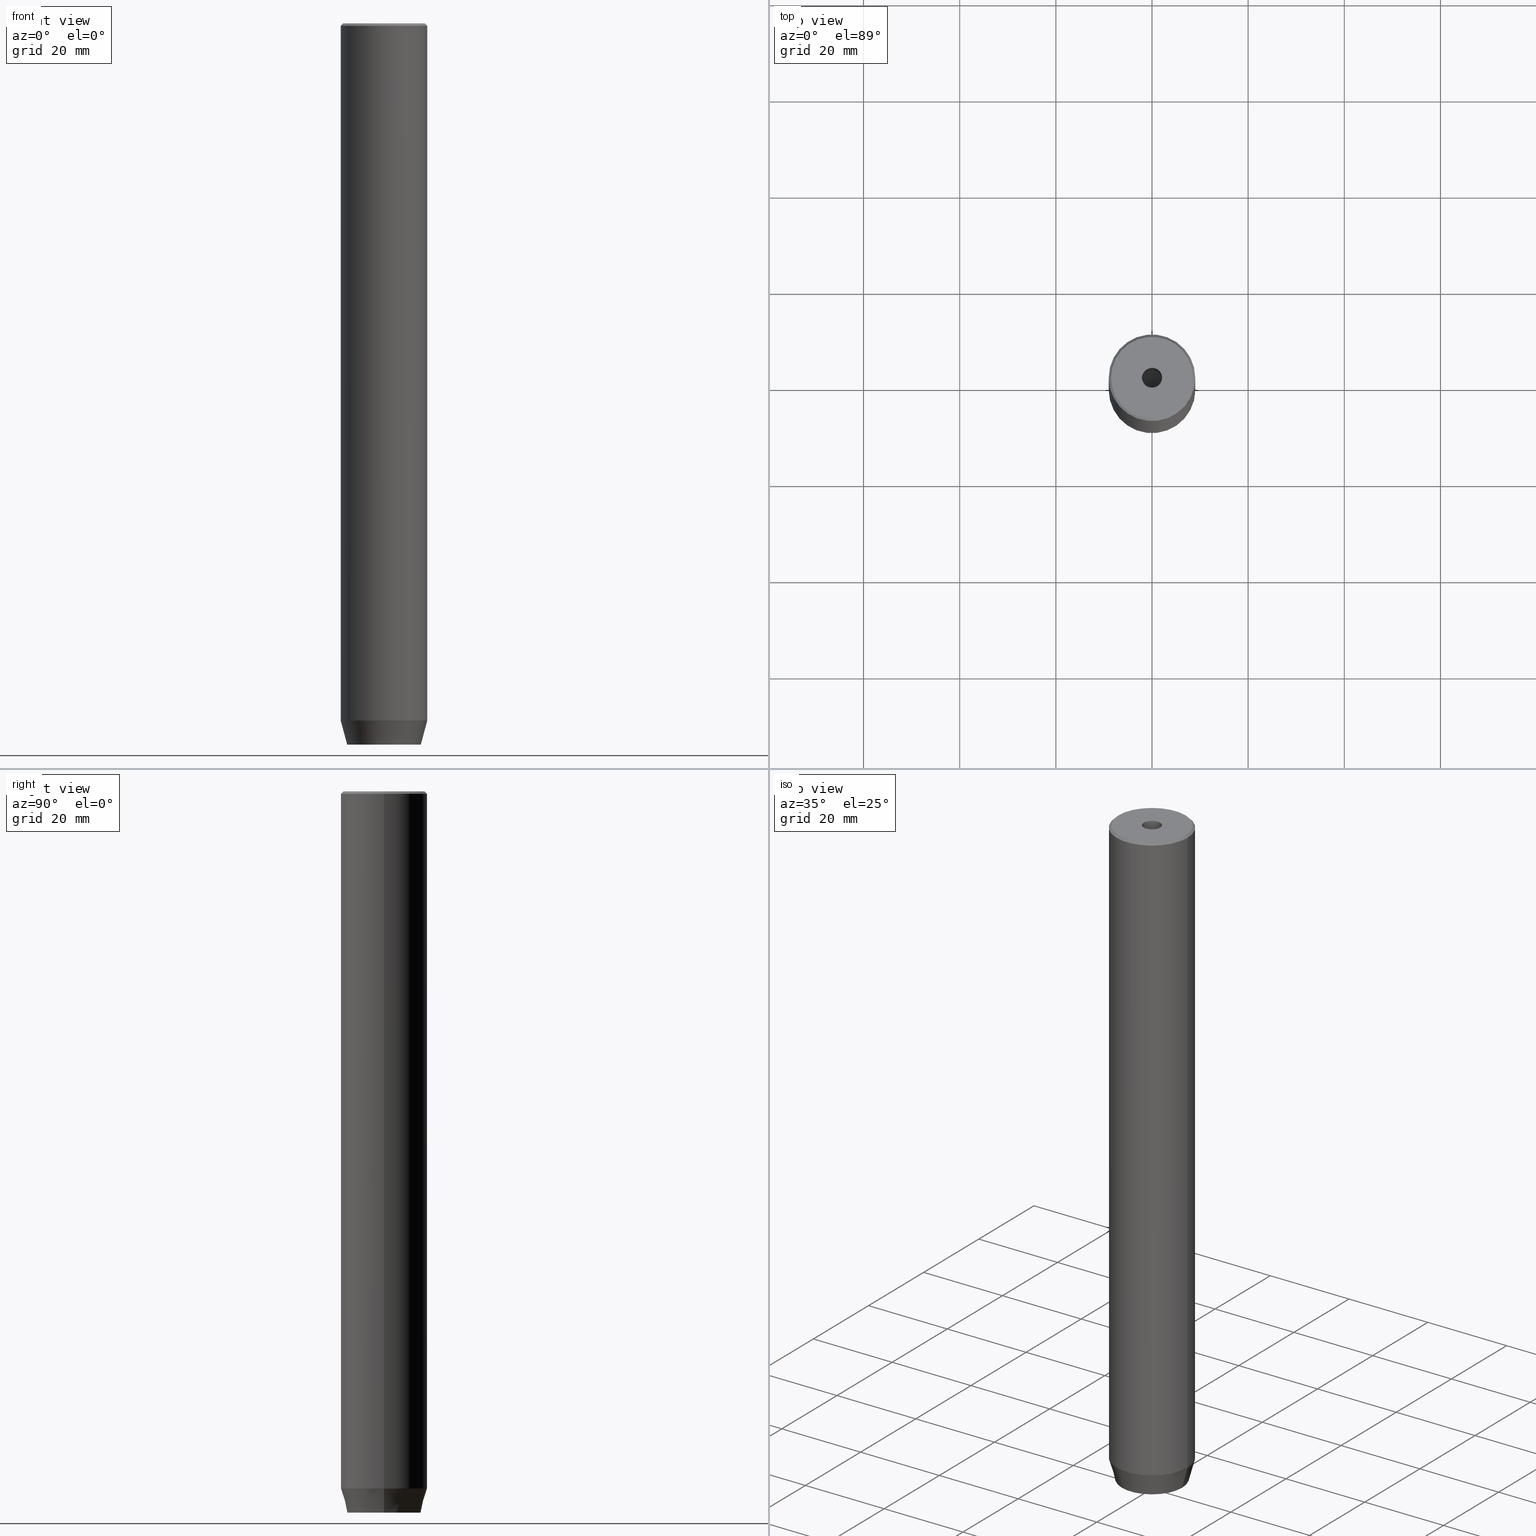
[diagram: canonical four-view strip — front | top / right | iso, engineering-drawing reading convention]
A machine part, canonical four-view strip (front | top / right | iso — engineering-drawing reading convention). The complete STEP part file that produces these views, byte-faithful:
ISO-10303-21;
HEADER;
FILE_DESCRIPTION (( 'STEP AP203' ),
    '1' );
FILE_NAME ('cc35.STEP',
    '2024-01-02T20:36:01',
    ( '' ),
    ( '' ),
    'SwSTEP 2.0',
    'SolidWorks 2019',
    '' );
FILE_SCHEMA (( 'CONFIG_CONTROL_DESIGN' ));
ENDSEC;

DATA;
#1 = CARTESIAN_POINT ( 'NONE',  ( -9.000000000000000000, 1.102182119232617714E-15, -144.9999999999999716 ) ) ;
#2 = ORIENTED_EDGE ( 'NONE', *, *, #428, .T. ) ;
#3 = CARTESIAN_POINT ( 'NONE',  ( 3.000000000000000000, 1.732050807568876527, -150.0000000000000000 ) ) ;
#4 = EDGE_CURVE ( 'NONE', #558, #394, #495, .T. ) ;
#5 = VERTEX_POINT ( 'NONE', #89 ) ;
#6 = VECTOR ( 'NONE', #150, 1000.000000000000000 ) ;
#7 = LINE ( 'NONE', #145, #283 ) ;
#8 = VERTEX_POINT ( 'NONE', #304 ) ;
#9 = DIRECTION ( 'NONE',  ( 1.000000000000000000, 0.000000000000000000, 0.000000000000000000 ) ) ;
#10 = LINE ( 'NONE', #233, #101 ) ;
#11 = EDGE_CURVE ( 'NONE', #84, #215, #270, .T. ) ;
#12 = VECTOR ( 'NONE', #71, 1000.000000000000000 ) ;
#13 = PLANE ( 'NONE',  #350 ) ;
#14 = PERSON_AND_ORGANIZATION ( #187, #148 ) ;
#15 = CYLINDRICAL_SURFACE ( 'NONE', #571, 9.000000000000000000 ) ;
#16 = CARTESIAN_POINT ( 'NONE',  ( -2.168404344971008868E-16, -3.464101615137754830, -147.1999999999999886 ) ) ;
#17 = ADVANCED_FACE ( 'NONE', ( #261 ), #509, .T. ) ;
#18 = DIRECTION ( 'NONE',  ( 0.000000000000000000, 0.000000000000000000, 1.000000000000000000 ) ) ;
#19 = PLANE ( 'NONE',  #461 ) ;
#20 = CIRCLE ( 'NONE', #327, 9.000000000000000000 ) ;
#21 = EDGE_LOOP ( 'NONE', ( #241, #587, #72, #380 ) ) ;
#22 = DIRECTION ( 'NONE',  ( -0.000000000000000000, -0.000000000000000000, 1.000000000000000000 ) ) ;
#23 = CARTESIAN_POINT ( 'NONE',  ( -3.000000000000000444, -7.511572993685800087E-16, -150.0000000000000000 ) ) ;
#24 = ORIENTED_EDGE ( 'NONE', *, *, #447, .T. ) ;
#25 = COORDINATED_UNIVERSAL_TIME_OFFSET ( 1, 0, .AHEAD. ) ;
#26 = PRODUCT_DEFINITION ( 'NEZN�M�', '', #330, #27 ) ;
#27 = DESIGN_CONTEXT ( 'detailed design', #70, 'design' ) ;
#28 = LINE ( 'NONE', #340, #378 ) ;
#29 = ORIENTED_EDGE ( 'NONE', *, *, #356, .F. ) ;
#30 = DATE_AND_TIME ( #256, #493 ) ;
#31 = DIRECTION ( 'NONE',  ( -0.000000000000000000, -0.000000000000000000, -1.000000000000000000 ) ) ;
#32 = VERTEX_POINT ( 'NONE', #456 ) ;
#33 = AXIS2_PLACEMENT_3D ( 'NONE', #143, #324, #390 ) ;
#34 = CALENDAR_DATE ( 2024, 2, 1 ) ;
#35 = DIRECTION ( 'NONE',  ( 1.000000000000000000, 0.000000000000000000, 0.000000000000000000 ) ) ;
#36 = ORIENTED_EDGE ( 'NONE', *, *, #191, .F. ) ;
#37 = PLANE ( 'NONE',  #42 ) ;
#38 = ORIENTED_EDGE ( 'NONE', *, *, #307, .F. ) ;
#39 = EDGE_CURVE ( 'NONE', #311, #394, #10, .T. ) ;
#40 = DIRECTION ( 'NONE',  ( -0.000000000000000000, -0.000000000000000000, 1.000000000000000000 ) ) ;
#41 = ORIENTED_EDGE ( 'NONE', *, *, #138, .F. ) ;
#42 = AXIS2_PLACEMENT_3D ( 'NONE', #496, #540, #267 ) ;
#43 = DIRECTION ( 'NONE',  ( -0.000000000000000000, -0.000000000000000000, 1.000000000000000000 ) ) ;
#44 = DIRECTION ( 'NONE',  ( -0.000000000000000000, -0.000000000000000000, -1.000000000000000000 ) ) ;
#45 = EDGE_CURVE ( 'NONE', #317, #479, #209, .T. ) ;
#46 = CARTESIAN_POINT ( 'NONE',  ( 0.000000000000000000, 0.000000000000000000, -150.0000000000000000 ) ) ;
#47 = ORIENTED_EDGE ( 'NONE', *, *, #202, .T. ) ;
#48 = DIRECTION ( 'NONE',  ( 2.503857664561933362E-16, -1.000000000000000000, 0.000000000000000000 ) ) ;
#49 = ORIENTED_EDGE ( 'NONE', *, *, #80, .T. ) ;
#50 = VECTOR ( 'NONE', #386, 1000.000000000000000 ) ;
#51 = DIRECTION ( 'NONE',  ( 1.000000000000000000, 0.000000000000000000, 0.000000000000000000 ) ) ;
#52 = CARTESIAN_POINT ( 'NONE',  ( 0.000000000000000000, 0.000000000000000000, -147.1999999999999886 ) ) ;
#53 = LINE ( 'NONE', #365, #569 ) ;
#54 = EDGE_CURVE ( 'NONE', #479, #526, #463, .T. ) ;
#55 = DIRECTION ( 'NONE',  ( 0.5000000000000001110, -0.8660254037844385966, 0.000000000000000000 ) ) ;
#56 = AXIS2_PLACEMENT_3D ( 'NONE', #336, #375, #117 ) ;
#57 = AXIS2_PLACEMENT_3D ( 'NONE', #415, #22, #318 ) ;
#58 = DIRECTION ( 'NONE',  ( -2.503857664561932376E-16, 1.000000000000000000, 0.000000000000000000 ) ) ;
#59 = ORIENTED_EDGE ( 'NONE', *, *, #428, .F. ) ;
#60 = EDGE_CURVE ( 'NONE', #558, #230, #185, .T. ) ;
#61 = LINE ( 'NONE', #372, #508 ) ;
#62 = CARTESIAN_POINT ( 'NONE',  ( -3.000000000000000444, -7.511572993685800087E-16, -147.1999999999999886 ) ) ;
#63 = CYLINDRICAL_SURFACE ( 'NONE', #158, 2.099999999999997424 ) ;
#64 = EDGE_LOOP ( 'NONE', ( #135, #120 ) ) ;
#65 = LINE ( 'NONE', #328, #482 ) ;
#66 = DIRECTION ( 'NONE',  ( -0.8660254037844385966, -0.5000000000000001110, 0.000000000000000000 ) ) ;
#67 = AXIS2_PLACEMENT_3D ( 'NONE', #561, #512, #35 ) ;
#68 = EDGE_LOOP ( 'NONE', ( #287, #362, #531, #183 ) ) ;
#69 = LOCAL_TIME ( 21, 36, 1.000000000000000000, #481 ) ;
#70 = APPLICATION_CONTEXT ( 'configuration controlled 3d designs of mechanical parts and assemblies' ) ;
#71 = DIRECTION ( 'NONE',  ( -0.8660254037844385966, -0.5000000000000001110, 0.000000000000000000 ) ) ;
#72 = ORIENTED_EDGE ( 'NONE', *, *, #60, .F. ) ;
#73 = EDGE_CURVE ( 'NONE', #397, #449, #61, .T. ) ;
#74 = CARTESIAN_POINT ( 'NONE',  ( -2.099999999999996092, 2.571758278209436534E-16, -20.00000000000000000 ) ) ;
#75 = ORIENTED_EDGE ( 'NONE', *, *, #114, .F. ) ;
#76 = PERSON_AND_ORGANIZATION ( #187, #148 ) ;
#77 = CARTESIAN_POINT ( 'NONE',  ( 0.000000000000000000, 0.000000000000000000, 0.000000000000000000 ) ) ;
#78 = ORIENTED_EDGE ( 'NONE', *, *, #490, .F. ) ;
#79 = CARTESIAN_POINT ( 'NONE',  ( -2.099999999999996092, 2.571758278209436534E-16, -20.00000000000000000 ) ) ;
#80 = EDGE_CURVE ( 'NONE', #469, #178, #506, .T. ) ;
#81 = DIRECTION ( 'NONE',  ( -0.8660254037844385966, 0.5000000000000001110, 0.000000000000000000 ) ) ;
#82 = APPROVAL_STATUS ( 'not_yet_approved' ) ;
#83 = DIRECTION ( 'NONE',  ( -0.000000000000000000, -0.000000000000000000, 1.000000000000000000 ) ) ;
#84 = VERTEX_POINT ( 'NONE', #407 ) ;
#85 = DIRECTION ( 'NONE',  ( 0.8660254037844387076, 0.4999999999999999445, 0.000000000000000000 ) ) ;
#86 = ORIENTED_EDGE ( 'NONE', *, *, #54, .T. ) ;
#87 = VECTOR ( 'NONE', #129, 1000.000000000000000 ) ;
#88 = CARTESIAN_POINT ( 'NONE',  ( 2.099999999999996092, 0.000000000000000000, -20.00000000000000000 ) ) ;
#89 = CARTESIAN_POINT ( 'NONE',  ( -5.207640850796248781E-15, 0.000000000000000000, -21.26180729995787999 ) ) ;
#90 = LINE ( 'NONE', #127, #235 ) ;
#91 = ORIENTED_EDGE ( 'NONE', *, *, #468, .F. ) ;
#92 =( NAMED_UNIT ( * ) PLANE_ANGLE_UNIT ( ) SI_UNIT ( $, .RADIAN. ) );
#93 = DIRECTION ( 'NONE',  ( -0.000000000000000000, -0.000000000000000000, 1.000000000000000000 ) ) ;
#94 = VECTOR ( 'NONE', #300, 1000.000000000000000 ) ;
#95 = ADVANCED_FACE ( 'NONE', ( #454 ), #520, .T. ) ;
#96 = DIRECTION ( 'NONE',  ( -1.000000000000000000, 0.000000000000000000, -0.000000000000000000 ) ) ;
#97 = FACE_OUTER_BOUND ( 'NONE', #170, .T. ) ;
#98 = DIRECTION ( 'NONE',  ( -0.000000000000000000, -0.000000000000000000, 1.000000000000000000 ) ) ;
#99 = CARTESIAN_POINT ( 'NONE',  ( -3.000000000000000888, 1.732050807568876527, -150.0000000000000000 ) ) ;
#100 = ADVANCED_FACE ( 'NONE', ( #240 ), #326, .F. ) ;
#101 = VECTOR ( 'NONE', #142, 1000.000000000000000 ) ;
#102 = AXIS2_PLACEMENT_3D ( 'NONE', #358, #219, #174 ) ;
#103 = CC_DESIGN_APPROVAL ( #401, ( #26 ) ) ;
#104 = CARTESIAN_POINT ( 'NONE',  ( 2.099999999999997424, 0.000000000000000000, 0.000000000000000000 ) ) ;
#105 = DIRECTION ( 'NONE',  ( 1.000000000000000000, 0.000000000000000000, 0.000000000000000000 ) ) ;
#106 = CARTESIAN_POINT ( 'NONE',  ( 0.000000000000000000, 0.000000000000000000, -0.4999999999999813483 ) ) ;
#107 = CARTESIAN_POINT ( 'NONE',  ( 3.000000000000000000, -1.732050807568876527, -147.1999999999999886 ) ) ;
#108 = ORIENTED_EDGE ( 'NONE', *, *, #253, .F. ) ;
#109 = APPLICATION_PROTOCOL_DEFINITION ( 'international standard', 'config_control_design', 1994, #70 ) ;
#110 = PRODUCT_DEFINITION_SHAPE ( 'NONE', 'NONE',  #26 ) ;
#111 = VECTOR ( 'NONE', #85, 999.9999999999998863 ) ;
#112 = FACE_OUTER_BOUND ( 'NONE', #21, .T. ) ;
#113 = CIRCLE ( 'NONE', #366, 7.660254037844373087 ) ;
#114 = EDGE_CURVE ( 'NONE', #8, #178, #409, .T. ) ;
#115 = ORIENTED_EDGE ( 'NONE', *, *, #498, .T. ) ;
#116 = AXIS2_PLACEMENT_3D ( 'NONE', #418, #18, #196 ) ;
#117 = DIRECTION ( 'NONE',  ( -0.8660254037844385966, 0.5000000000000001110, 0.000000000000000000 ) ) ;
#118 = VERTEX_POINT ( 'NONE', #16 ) ;
#119 = CARTESIAN_POINT ( 'NONE',  ( -7.660254037844373087, 1.020146339021393680E-15, -150.0000000000000000 ) ) ;
#120 = ORIENTED_EDGE ( 'NONE', *, *, #253, .T. ) ;
#121 = APPROVAL_ROLE ( '' ) ;
#122 = EDGE_CURVE ( 'NONE', #118, #397, #500, .T. ) ;
#123 = DIRECTION ( 'NONE',  ( -0.000000000000000000, -0.000000000000000000, -1.000000000000000000 ) ) ;
#124 = ORIENTED_EDGE ( 'NONE', *, *, #505, .T. ) ;
#125 = CONICAL_SURFACE ( 'NONE', #197, 2.099999999999996092, 1.029744258676652091 ) ;
#126 = PERSON_AND_ORGANIZATION ( #187, #148 ) ;
#127 = CARTESIAN_POINT ( 'NONE',  ( -1.084202172485504434E-16, 3.464101615137754830, -147.1999999999999886 ) ) ;
#128 = ORIENTED_EDGE ( 'NONE', *, *, #45, .F. ) ;
#129 = DIRECTION ( 'NONE',  ( 0.8571673007021111124, 0.000000000000000000, 0.5150380749100562650 ) ) ;
#130 = ORIENTED_EDGE ( 'NONE', *, *, #505, .F. ) ;
#131 = CARTESIAN_POINT ( 'NONE',  ( 0.000000000000000000, 0.000000000000000000, -144.9999999999999716 ) ) ;
#132 = ORIENTED_EDGE ( 'NONE', *, *, #144, .T. ) ;
#133 = AXIS2_PLACEMENT_3D ( 'NONE', #464, #535, #179 ) ;
#134 = DIRECTION ( 'NONE',  ( 1.000000000000000000, 0.000000000000000000, 0.000000000000000000 ) ) ;
#135 = ORIENTED_EDGE ( 'NONE', *, *, #385, .T. ) ;
#136 = FACE_OUTER_BOUND ( 'NONE', #273, .T. ) ;
#137 = DIRECTION ( 'NONE',  ( 0.2588190451025214056, 0.000000000000000000, 0.9659258262890680902 ) ) ;
#138 = EDGE_CURVE ( 'NONE', #476, #387, #53, .T. ) ;
#139 = CARTESIAN_POINT ( 'NONE',  ( -2.099999999999997424, 2.571758278209438506E-16, 0.000000000000000000 ) ) ;
#140 = VECTOR ( 'NONE', #429, 1000.000000000000000 ) ;
#141 = LOCAL_TIME ( 21, 36, 1.000000000000000000, #25 ) ;
#142 = DIRECTION ( 'NONE',  ( 0.8660254037844385966, -0.5000000000000001110, 0.000000000000000000 ) ) ;
#143 = CARTESIAN_POINT ( 'NONE',  ( 0.000000000000000000, 0.000000000000000000, -150.0000000000000000 ) ) ;
#144 = EDGE_CURVE ( 'NONE', #294, #32, #319, .T. ) ;
#145 = CARTESIAN_POINT ( 'NONE',  ( 3.000000000000000000, 0.000000000000000000, -150.0000000000000000 ) ) ;
#146 = DIRECTION ( 'NONE',  ( -0.000000000000000000, -0.000000000000000000, 1.000000000000000000 ) ) ;
#147 = CARTESIAN_POINT ( 'NONE',  ( 3.000000000000000000, 1.732050807568876527, -147.1999999999999886 ) ) ;
#148 = ORGANIZATION ( 'NEUR�EN�', 'NEUR�EN�', '' ) ;
#149 = DIRECTION ( 'NONE',  ( -0.000000000000000000, -0.000000000000000000, 1.000000000000000000 ) ) ;
#150 = DIRECTION ( 'NONE',  ( -0.000000000000000000, -0.000000000000000000, 1.000000000000000000 ) ) ;
#151 = CARTESIAN_POINT ( 'NONE',  ( 7.660254037844373087, 0.000000000000000000, -150.0000000000000000 ) ) ;
#152 = ORIENTED_EDGE ( 'NONE', *, *, #39, .T. ) ;
#153 = LINE ( 'NONE', #466, #6 ) ;
#154 = ADVANCED_FACE ( 'NONE', ( #410 ), #15, .T. ) ;
#155 = FACE_BOUND ( 'NONE', #175, .T. ) ;
#156 = ORIENTED_EDGE ( 'NONE', *, *, #477, .T. ) ;
#157 = COORDINATED_UNIVERSAL_TIME_OFFSET ( 1, 0, .AHEAD. ) ;
#158 = AXIS2_PLACEMENT_3D ( 'NONE', #556, #149, #105 ) ;
#159 = DIRECTION ( 'NONE',  ( -0.000000000000000000, 0.000000000000000000, -1.000000000000000000 ) ) ;
#160 = ORIENTED_EDGE ( 'NONE', *, *, #73, .T. ) ;
#161 = COORDINATED_UNIVERSAL_TIME_OFFSET ( 1, 0, .AHEAD. ) ;
#162 = DIRECTION ( 'NONE',  ( 1.000000000000000000, 0.000000000000000000, -0.000000000000000000 ) ) ;
#163 = VERTEX_POINT ( 'NONE', #414 ) ;
#164 = EDGE_CURVE ( 'NONE', #317, #301, #193, .T. ) ;
#165 = CARTESIAN_POINT ( 'NONE',  ( 3.000000000000000000, -1.732050807568876527, -150.0000000000000000 ) ) ;
#166 = ORIENTED_EDGE ( 'NONE', *, *, #498, .F. ) ;
#167 = DATE_AND_TIME ( #427, #69 ) ;
#168 = CARTESIAN_POINT ( 'NONE',  ( 0.000000000000000000, 0.000000000000000000, -144.9999999999999716 ) ) ;
#169 = AXIS2_PLACEMENT_3D ( 'NONE', #363, #55, #457 ) ;
#170 = EDGE_LOOP ( 'NONE', ( #562, #36 ) ) ;
#171 = CIRCLE ( 'NONE', #33, 7.660254037844373087 ) ;
#172 = CC_DESIGN_APPROVAL ( #440, ( #330 ) ) ;
#173 = DATE_AND_TIME ( #582, #237 ) ;
#174 = DIRECTION ( 'NONE',  ( -1.000000000000000000, 0.000000000000000000, 0.000000000000000000 ) ) ;
#175 = EDGE_LOOP ( 'NONE', ( #78, #314 ) ) ;
#176 = CARTESIAN_POINT ( 'NONE',  ( 8.500000000000007105, 1.071565949253934321E-15, 0.000000000000000000 ) ) ;
#177 = CC_DESIGN_PERSON_AND_ORGANIZATION_ASSIGNMENT ( #335, #517, ( #281 ) ) ;
#178 = VERTEX_POINT ( 'NONE', #232 ) ;
#179 = DIRECTION ( 'NONE',  ( 1.000000000000000000, 0.000000000000000000, 0.000000000000000000 ) ) ;
#180 = EDGE_LOOP ( 'NONE', ( #376, #246, #195, #47 ) ) ;
#181 = VECTOR ( 'NONE', #416, 1000.000000000000000 ) ;
#182 = CIRCLE ( 'NONE', #257, 2.099999999999998757 ) ;
#183 = ORIENTED_EDGE ( 'NONE', *, *, #307, .T. ) ;
#184 = ADVANCED_FACE ( 'NONE', ( #503, #97 ), #13, .T. ) ;
#185 = LINE ( 'NONE', #275, #459 ) ;
#186 = CC_DESIGN_DATE_AND_TIME_ASSIGNMENT ( #296, #529, ( #198 ) ) ;
#187 = PERSON ( 'NEUR�EN�', 'NEUR�EN�', 'NEUR�EN�', ('NEUR�EN�'), ('NEUR�EN�'), ('NEUR�EN�') ) ;
#188 = DIRECTION ( 'NONE',  ( 1.000000000000000000, 0.000000000000000000, 0.000000000000000000 ) ) ;
#189 = VECTOR ( 'NONE', #486, 1000.000000000000000 ) ;
#190 = CIRCLE ( 'NONE', #455, 2.099999999999996092 ) ;
#191 = EDGE_CURVE ( 'NONE', #252, #294, #171, .T. ) ;
#192 = CARTESIAN_POINT ( 'NONE',  ( 0.000000000000000000, 7.660254037844373087, -150.0000000000000000 ) ) ;
#193 = LINE ( 'NONE', #139, #313 ) ;
#194 = CARTESIAN_POINT ( 'NONE',  ( 0.000000000000000000, 0.000000000000000000, -144.9999999999999716 ) ) ;
#195 = ORIENTED_EDGE ( 'NONE', *, *, #447, .F. ) ;
#196 = DIRECTION ( 'NONE',  ( 1.000000000000000000, 0.000000000000000000, 0.000000000000000000 ) ) ;
#197 = AXIS2_PLACEMENT_3D ( 'NONE', #374, #332, #51 ) ;
#198 = SECURITY_CLASSIFICATION ( '', '', #485 ) ;
#199 = DIRECTION ( 'NONE',  ( -0.000000000000000000, -0.000000000000000000, 1.000000000000000000 ) ) ;
#200 = EDGE_LOOP ( 'NONE', ( #403, #383, #347 ) ) ;
#201 = CARTESIAN_POINT ( 'NONE',  ( 0.000000000000000000, 0.000000000000000000, -20.00000000000000000 ) ) ;
#202 = EDGE_CURVE ( 'NONE', #449, #579, #289, .T. ) ;
#203 = CARTESIAN_POINT ( 'NONE',  ( 0.000000000000000000, 0.000000000000000000, -1.990051048614449116E-16 ) ) ;
#204 = ORIENTED_EDGE ( 'NONE', *, *, #202, .F. ) ;
#205 = PRODUCT_RELATED_PRODUCT_CATEGORY ( 'detail', '', ( #281 ) ) ;
#206 = CARTESIAN_POINT ( 'NONE',  ( -2.099999999999998757, 2.571758278209440478E-16, -1.990051048614449116E-16 ) ) ;
#207 = ORIENTED_EDGE ( 'NONE', *, *, #164, .T. ) ;
#208 = DATE_AND_TIME ( #34, #412 ) ;
#209 = CIRCLE ( 'NONE', #491, 2.099999999999996092 ) ;
#210 = DIRECTION ( 'NONE',  ( -0.000000000000000000, -0.000000000000000000, 1.000000000000000000 ) ) ;
#211 = EDGE_CURVE ( 'NONE', #230, #118, #467, .T. ) ;
#212 = EDGE_LOOP ( 'NONE', ( #29, #576, #290, #521, #541, #225 ) ) ;
#213 = PERSON_AND_ORGANIZATION ( #187, #148 ) ;
#214 = DIRECTION ( 'NONE',  ( -0.000000000000000000, -0.000000000000000000, 1.000000000000000000 ) ) ;
#215 = VERTEX_POINT ( 'NONE', #527 ) ;
#216 = PERSON_AND_ORGANIZATION_ROLE ( 'creator' ) ;
#217 = CARTESIAN_POINT ( 'NONE',  ( 0.000000000000000000, 0.000000000000000000, -20.00000000000000000 ) ) ;
#218 = ORIENTED_EDGE ( 'NONE', *, *, #413, .F. ) ;
#219 = DIRECTION ( 'NONE',  ( 0.000000000000000000, 0.000000000000000000, -1.000000000000000000 ) ) ;
#220 = ORIENTED_EDGE ( 'NONE', *, *, #271, .T. ) ;
#221 = CIRCLE ( 'NONE', #292, 2.099999999999998757 ) ;
#222 = APPROVAL_PERSON_ORGANIZATION ( #213, #440, #524 ) ;
#223 = ADVANCED_FACE ( 'NONE', ( #155, #564 ), #19, .T. ) ;
#224 = DIRECTION ( 'NONE',  ( 1.000000000000000000, 0.000000000000000000, 0.000000000000000000 ) ) ;
#225 = ORIENTED_EDGE ( 'NONE', *, *, #39, .F. ) ;
#226 = DIRECTION ( 'NONE',  ( 1.000000000000000000, 0.000000000000000000, 0.000000000000000000 ) ) ;
#227 = ORIENTED_EDGE ( 'NONE', *, *, #329, .F. ) ;
#228 = DIRECTION ( 'NONE',  ( -1.000000000000000000, -2.503857664561933362E-16, 0.000000000000000000 ) ) ;
#229 = EDGE_CURVE ( 'NONE', #230, #361, #436, .T. ) ;
#230 = VERTEX_POINT ( 'NONE', #107 ) ;
#231 = CIRCLE ( 'NONE', #367, 9.000000000000000000 ) ;
#232 = CARTESIAN_POINT ( 'NONE',  ( -9.000000000000000000, 1.102182119232617714E-15, -0.4999999999999813483 ) ) ;
#233 = CARTESIAN_POINT ( 'NONE',  ( 1.500000000000000222, 2.598076211353315568, -150.0000000000000000 ) ) ;
#234 = CARTESIAN_POINT ( 'NONE',  ( -8.500000000000007105, 0.000000000000000000, 0.000000000000000000 ) ) ;
#235 = VECTOR ( 'NONE', #123, 1000.000000000000000 ) ;
#236 = MECHANICAL_CONTEXT ( 'NONE', #369, 'mechanical' ) ;
#237 = LOCAL_TIME ( 21, 36, 1.000000000000000000, #157 ) ;
#238 = CARTESIAN_POINT ( 'NONE',  ( -1.500000000000000666, -2.598076211353316456, -147.1999999999999886 ) ) ;
#239 = FACE_OUTER_BOUND ( 'NONE', #462, .T. ) ;
#240 = FACE_OUTER_BOUND ( 'NONE', #487, .T. ) ;
#241 = ORIENTED_EDGE ( 'NONE', *, *, #584, .T. ) ;
#242 = LINE ( 'NONE', #423, #276 ) ;
#243 = ADVANCED_BREP_SHAPE_REPRESENTATION ( 'cc35', ( #266, #116 ), #585 ) ;
#244 = CARTESIAN_POINT ( 'NONE',  ( 3.000000000000000000, 0.000000000000000000, -147.1999999999999886 ) ) ;
#245 = EDGE_CURVE ( 'NONE', #361, #84, #515, .T. ) ;
#246 = ORIENTED_EDGE ( 'NONE', *, *, #395, .F. ) ;
#247 = DIRECTION ( 'NONE',  ( 1.000000000000000000, 0.000000000000000000, 0.000000000000000000 ) ) ;
#248 = VECTOR ( 'NONE', #547, 1000.000000000000000 ) ;
#249 = CARTESIAN_POINT ( 'NONE',  ( 0.000000000000000000, 0.000000000000000000, 0.000000000000000000 ) ) ;
#250 = ORIENTED_EDGE ( 'NONE', *, *, #329, .T. ) ;
#251 = CYLINDRICAL_SURFACE ( 'NONE', #67, 2.099999999999997424 ) ;
#252 = VERTEX_POINT ( 'NONE', #119 ) ;
#253 = EDGE_CURVE ( 'NONE', #476, #8, #583, .T. ) ;
#254 = FACE_OUTER_BOUND ( 'NONE', #264, .T. ) ;
#255 = ORIENTED_EDGE ( 'NONE', *, *, #54, .F. ) ;
#256 = CALENDAR_DATE ( 2024, 2, 1 ) ;
#257 = AXIS2_PLACEMENT_3D ( 'NONE', #450, #214, #325 ) ;
#258 = DIRECTION ( 'NONE',  ( 1.000000000000000000, 0.000000000000000000, 0.000000000000000000 ) ) ;
#259 = ORIENTED_EDGE ( 'NONE', *, *, #413, .T. ) ;
#260 = DIRECTION ( 'NONE',  ( 1.000000000000000000, 0.000000000000000000, 0.000000000000000000 ) ) ;
#261 = FACE_OUTER_BOUND ( 'NONE', #443, .T. ) ;
#262 = SHAPE_DEFINITION_REPRESENTATION ( #110, #243 ) ;
#263 = FACE_OUTER_BOUND ( 'NONE', #298, .T. ) ;
#264 = EDGE_LOOP ( 'NONE', ( #128, #207, #220, #255 ) ) ;
#265 = EDGE_CURVE ( 'NONE', #215, #579, #574, .T. ) ;
#266 = MANIFOLD_SOLID_BREP ( 'Vrt�k z�vitn�ku pro M5 z�vit1', #377 ) ;
#267 = DIRECTION ( 'NONE',  ( -0.8660254037844387076, -0.4999999999999999445, 0.000000000000000000 ) ) ;
#268 = CARTESIAN_POINT ( 'NONE',  ( 3.000000000000000000, 1.732050807568876527, -147.1999999999999886 ) ) ;
#269 = FACE_OUTER_BOUND ( 'NONE', #352, .T. ) ;
#270 = LINE ( 'NONE', #484, #480 ) ;
#271 = EDGE_CURVE ( 'NONE', #301, #526, #221, .T. ) ;
#272 = CARTESIAN_POINT ( 'NONE',  ( -3.000000000000000888, 1.732050807568876527, -147.1999999999999886 ) ) ;
#273 = EDGE_LOOP ( 'NONE', ( #391, #204, #354, #497 ) ) ;
#274 = DIRECTION ( 'NONE',  ( 0.000000000000000000, -1.000000000000000000, 0.000000000000000000 ) ) ;
#275 = CARTESIAN_POINT ( 'NONE',  ( 3.000000000000000000, 0.000000000000000000, -147.1999999999999886 ) ) ;
#276 = VECTOR ( 'NONE', #499, 1000.000000000000000 ) ;
#277 = DIRECTION ( 'NONE',  ( 0.000000000000000000, 0.000000000000000000, -1.000000000000000000 ) ) ;
#278 = DIRECTION ( 'NONE',  ( -0.000000000000000000, -0.000000000000000000, 1.000000000000000000 ) ) ;
#279 = ADVANCED_FACE ( 'NONE', ( #112 ), #331, .F. ) ;
#280 = CARTESIAN_POINT ( 'NONE',  ( 0.000000000000000000, 0.000000000000000000, -20.00000000000000000 ) ) ;
#281 = PRODUCT ( 'cc35', 'cc35', '', ( #236 ) ) ;
#282 = AXIS2_PLACEMENT_3D ( 'NONE', #217, #396, #543 ) ;
#283 = VECTOR ( 'NONE', #274, 1000.000000000000000 ) ;
#284 = DIRECTION ( 'NONE',  ( 0.000000000000000000, -1.000000000000000000, 0.000000000000000000 ) ) ;
#285 = ADVANCED_FACE ( 'NONE', ( #343 ), #251, .F. ) ;
#286 = CARTESIAN_POINT ( 'NONE',  ( -3.000000000000000888, 1.732050807568876527, -147.1999999999999886 ) ) ;
#287 = ORIENTED_EDGE ( 'NONE', *, *, #11, .T. ) ;
#288 = CC_DESIGN_PERSON_AND_ORGANIZATION_ASSIGNMENT ( #126, #305, ( #198 ) ) ;
#289 = LINE ( 'NONE', #286, #94 ) ;
#290 = ORIENTED_EDGE ( 'NONE', *, *, #11, .F. ) ;
#291 = FACE_OUTER_BOUND ( 'NONE', #308, .T. ) ;
#292 = AXIS2_PLACEMENT_3D ( 'NONE', #203, #210, #419 ) ;
#293 = CARTESIAN_POINT ( 'NONE',  ( 0.000000000000000000, 3.464101615137754386, -150.0000000000000000 ) ) ;
#294 = VERTEX_POINT ( 'NONE', #151 ) ;
#295 = ADVANCED_FACE ( 'NONE', ( #382 ), #431, .F. ) ;
#296 = DATE_AND_TIME ( #345, #141 ) ;
#297 = DIRECTION ( 'NONE',  ( -0.5000000000000001110, -0.8660254037844385966, 0.000000000000000000 ) ) ;
#298 = EDGE_LOOP ( 'NONE', ( #516, #156, #115, #124 ) ) ;
#299 = APPROVAL ( #82, 'NEUR�EN�' ) ;
#300 = DIRECTION ( 'NONE',  ( -0.000000000000000000, -0.000000000000000000, -1.000000000000000000 ) ) ;
#301 = VERTEX_POINT ( 'NONE', #206 ) ;
#302 = AXIS2_PLACEMENT_3D ( 'NONE', #442, #43, #224 ) ;
#303 = FACE_OUTER_BOUND ( 'NONE', #180, .T. ) ;
#304 = CARTESIAN_POINT ( 'NONE',  ( -8.500000000000007105, 0.000000000000000000, 0.000000000000000000 ) ) ;
#305 = PERSON_AND_ORGANIZATION_ROLE ( 'classification_officer' ) ;
#306 = DIRECTION ( 'NONE',  ( 0.000000000000000000, 0.000000000000000000, -1.000000000000000000 ) ) ;
#307 = EDGE_CURVE ( 'NONE', #118, #84, #28, .T. ) ;
#308 = EDGE_LOOP ( 'NONE', ( #91, #417, #438 ) ) ;
#309 = LINE ( 'NONE', #355, #557 ) ;
#310 = CC_DESIGN_PERSON_AND_ORGANIZATION_ASSIGNMENT ( #384, #566, ( #330 ) ) ;
#311 = VERTEX_POINT ( 'NONE', #293 ) ;
#312 = DIRECTION ( 'NONE',  ( -0.000000000000000000, -0.000000000000000000, 1.000000000000000000 ) ) ;
#313 = VECTOR ( 'NONE', #320, 1000.000000000000000 ) ;
#314 = ORIENTED_EDGE ( 'NONE', *, *, #271, .F. ) ;
#315 = ADVANCED_FACE ( 'NONE', ( #333 ), #525, .F. ) ;
#316 = CARTESIAN_POINT ( 'NONE',  ( 2.099999999999996092, 0.000000000000000000, -20.00000000000000000 ) ) ;
#317 = VERTEX_POINT ( 'NONE', #74 ) ;
#318 = DIRECTION ( 'NONE',  ( 1.000000000000000000, 0.000000000000000000, 0.000000000000000000 ) ) ;
#319 = LINE ( 'NONE', #323, #321 ) ;
#320 = DIRECTION ( 'NONE',  ( -0.000000000000000000, -0.000000000000000000, 1.000000000000000000 ) ) ;
#321 = VECTOR ( 'NONE', #137, 1000.000000000000000 ) ;
#322 = ADVANCED_FACE ( 'NONE', ( #254 ), #63, .F. ) ;
#323 = CARTESIAN_POINT ( 'NONE',  ( 9.000000000000000000, 0.000000000000000000, -144.9999999999999716 ) ) ;
#324 = DIRECTION ( 'NONE',  ( -0.000000000000000000, -0.000000000000000000, 1.000000000000000000 ) ) ;
#325 = DIRECTION ( 'NONE',  ( 1.000000000000000000, 0.000000000000000000, 0.000000000000000000 ) ) ;
#326 = PLANE ( 'NONE',  #169 ) ;
#327 = AXIS2_PLACEMENT_3D ( 'NONE', #106, #553, #247 ) ;
#328 = CARTESIAN_POINT ( 'NONE',  ( 1.500000000000000222, 2.598076211353315568, -147.1999999999999886 ) ) ;
#329 = EDGE_CURVE ( 'NONE', #178, #387, #542, .T. ) ;
#330 = PRODUCT_DEFINITION_FORMATION_WITH_SPECIFIED_SOURCE ( 'LIBOVOLN�', '', #281, .NOT_KNOWN. ) ;
#331 = PLANE ( 'NONE',  #422 ) ;
#332 = DIRECTION ( 'NONE',  ( -0.000000000000000000, -0.000000000000000000, 1.000000000000000000 ) ) ;
#333 = FACE_OUTER_BOUND ( 'NONE', #68, .T. ) ;
#334 = ORIENTED_EDGE ( 'NONE', *, *, #138, .T. ) ;
#335 = PERSON_AND_ORGANIZATION ( #187, #148 ) ;
#336 = CARTESIAN_POINT ( 'NONE',  ( 1.500000000000000222, 2.598076211353315568, -147.1999999999999886 ) ) ;
#337 = EDGE_LOOP ( 'NONE', ( #218, #341, #132, #420 ) ) ;
#338 = APPROVAL_DATE_TIME ( #167, #401 ) ;
#339 = CONICAL_SURFACE ( 'NONE', #102, 8.500000000000007105, 0.7853981633974587151 ) ;
#340 = CARTESIAN_POINT ( 'NONE',  ( -2.168404344971008868E-16, -3.464101615137754830, -147.1999999999999886 ) ) ;
#341 = ORIENTED_EDGE ( 'NONE', *, *, #191, .T. ) ;
#342 = PERSON_AND_ORGANIZATION_ROLE ( 'design_supplier' ) ;
#343 = FACE_OUTER_BOUND ( 'NONE', #430, .T. ) ;
#344 = ORIENTED_EDGE ( 'NONE', *, *, #122, .T. ) ;
#345 = CALENDAR_DATE ( 2024, 2, 1 ) ;
#346 = DIRECTION ( 'NONE',  ( -1.000000000000000000, 0.000000000000000000, 0.000000000000000000 ) ) ;
#347 = ORIENTED_EDGE ( 'NONE', *, *, #568, .T. ) ;
#348 = APPROVAL_ROLE ( '' ) ;
#349 = ADVANCED_FACE ( 'NONE', ( #269 ), #435, .T. ) ;
#350 = AXIS2_PLACEMENT_3D ( 'NONE', #192, #370, #552 ) ;
#351 = DIRECTION ( 'NONE',  ( -0.000000000000000000, -0.000000000000000000, 1.000000000000000000 ) ) ;
#352 = EDGE_LOOP ( 'NONE', ( #41, #536, #473, #130 ) ) ;
#353 = LINE ( 'NONE', #316, #87 ) ;
#354 = ORIENTED_EDGE ( 'NONE', *, *, #73, .F. ) ;
#355 = CARTESIAN_POINT ( 'NONE',  ( -1.499999999999999556, 2.598076211353316012, -150.0000000000000000 ) ) ;
#356 = EDGE_CURVE ( 'NONE', #579, #311, #309, .T. ) ;
#357 = EDGE_LOOP ( 'NONE', ( #108, #334, #227, #75 ) ) ;
#358 = CARTESIAN_POINT ( 'NONE',  ( 0.000000000000000000, 0.000000000000000000, 0.000000000000000000 ) ) ;
#359 = VECTOR ( 'NONE', #44, 1000.000000000000000 ) ;
#360 = AXIS2_PLACEMENT_3D ( 'NONE', #530, #351, #260 ) ;
#361 = VERTEX_POINT ( 'NONE', #165 ) ;
#362 = ORIENTED_EDGE ( 'NONE', *, *, #551, .F. ) ;
#363 = CARTESIAN_POINT ( 'NONE',  ( 1.500000000000000222, -2.598076211353315568, -147.1999999999999886 ) ) ;
#364 = ADVANCED_FACE ( 'NONE', ( #439 ), #492, .F. ) ;
#365 = CARTESIAN_POINT ( 'NONE',  ( 8.500000000000007105, 1.040949779275251126E-15, 0.000000000000000000 ) ) ;
#366 = AXIS2_PLACEMENT_3D ( 'NONE', #46, #40, #226 ) ;
#367 = AXIS2_PLACEMENT_3D ( 'NONE', #168, #83, #134 ) ;
#368 = CC_DESIGN_SECURITY_CLASSIFICATION ( #198, ( #330 ) ) ;
#369 = APPLICATION_CONTEXT ( 'configuration controlled 3d designs of mechanical parts and assemblies' ) ;
#370 = DIRECTION ( 'NONE',  ( 0.000000000000000000, 0.000000000000000000, -1.000000000000000000 ) ) ;
#371 = APPROVAL_STATUS ( 'not_yet_approved' ) ;
#372 = CARTESIAN_POINT ( 'NONE',  ( -3.000000000000000444, -7.511572993685800087E-16, -147.1999999999999886 ) ) ;
#373 = EDGE_CURVE ( 'NONE', #5, #317, #399, .T. ) ;
#374 = CARTESIAN_POINT ( 'NONE',  ( 0.000000000000000000, 0.000000000000000000, -20.00000000000000000 ) ) ;
#375 = DIRECTION ( 'NONE',  ( 0.5000000000000001110, 0.8660254037844385966, -0.000000000000000000 ) ) ;
#376 = ORIENTED_EDGE ( 'NONE', *, *, #356, .T. ) ;
#377 = CLOSED_SHELL ( 'NONE', ( #322, #514, #458, #560, #154, #184, #223, #453, #95, #349, #408, #545, #315, #100, #279, #295, #17, #364, #285 ) ) ;
#378 = VECTOR ( 'NONE', #31, 1000.000000000000000 ) ;
#379 = DIRECTION ( 'NONE',  ( 0.000000000000000000, -0.000000000000000000, 1.000000000000000000 ) ) ;
#380 = ORIENTED_EDGE ( 'NONE', *, *, #4, .T. ) ;
#381 =( LENGTH_UNIT ( ) NAMED_UNIT ( * ) SI_UNIT ( .MILLI., .METRE. ) );
#382 = FACE_OUTER_BOUND ( 'NONE', #465, .T. ) ;
#383 = ORIENTED_EDGE ( 'NONE', *, *, #468, .T. ) ;
#384 = PERSON_AND_ORGANIZATION ( #187, #148 ) ;
#385 = EDGE_CURVE ( 'NONE', #8, #476, #470, .T. ) ;
#386 = DIRECTION ( 'NONE',  ( -2.503857664561932376E-16, 1.000000000000000000, 0.000000000000000000 ) ) ;
#387 = VERTEX_POINT ( 'NONE', #448 ) ;
#388 = COORDINATED_UNIVERSAL_TIME_OFFSET ( 1, 0, .AHEAD. ) ;
#389 = AXIS2_PLACEMENT_3D ( 'NONE', #444, #306, #346 ) ;
#390 = DIRECTION ( 'NONE',  ( 1.000000000000000000, 0.000000000000000000, 0.000000000000000000 ) ) ;
#391 = ORIENTED_EDGE ( 'NONE', *, *, #265, .T. ) ;
#392 = APPROVAL_DATE_TIME ( #30, #299 ) ;
#393 = CYLINDRICAL_SURFACE ( 'NONE', #302, 9.000000000000000000 ) ;
#394 = VERTEX_POINT ( 'NONE', #3 ) ;
#395 = EDGE_CURVE ( 'NONE', #163, #311, #90, .T. ) ;
#396 = DIRECTION ( 'NONE',  ( -0.000000000000000000, -0.000000000000000000, 1.000000000000000000 ) ) ;
#397 = VERTEX_POINT ( 'NONE', #537 ) ;
#398 = CC_DESIGN_PERSON_AND_ORGANIZATION_ASSIGNMENT ( #474, #216, ( #26 ) ) ;
#399 = LINE ( 'NONE', #79, #549 ) ;
#400 = ORIENTED_EDGE ( 'NONE', *, *, #437, .T. ) ;
#401 = APPROVAL ( #371, 'NEUR�EN�' ) ;
#402 = CARTESIAN_POINT ( 'NONE',  ( -9.000000000000000000, 1.102182119232617714E-15, -144.9999999999999716 ) ) ;
#403 = ORIENTED_EDGE ( 'NONE', *, *, #373, .F. ) ;
#404 = LINE ( 'NONE', #488, #111 ) ;
#405 = ORIENTED_EDGE ( 'NONE', *, *, #568, .F. ) ;
#406 = ORIENTED_EDGE ( 'NONE', *, *, #245, .T. ) ;
#407 = CARTESIAN_POINT ( 'NONE',  ( -2.168404344971008868E-16, -3.464101615137754830, -150.0000000000000000 ) ) ;
#408 = ADVANCED_FACE ( 'NONE', ( #303 ), #37, .F. ) ;
#409 = LINE ( 'NONE', #234, #501 ) ;
#410 = FACE_OUTER_BOUND ( 'NONE', #489, .T. ) ;
#411 = AXIS2_PLACEMENT_3D ( 'NONE', #249, #199, #425 ) ;
#412 = LOCAL_TIME ( 21, 36, 1.000000000000000000, #161 ) ;
#413 = EDGE_CURVE ( 'NONE', #252, #469, #580, .T. ) ;
#414 = CARTESIAN_POINT ( 'NONE',  ( -1.084202172485504434E-16, 3.464101615137754830, -147.1999999999999886 ) ) ;
#415 = CARTESIAN_POINT ( 'NONE',  ( 0.000000000000000000, 0.000000000000000000, -144.9999999999999716 ) ) ;
#416 = DIRECTION ( 'NONE',  ( -0.000000000000000000, -0.000000000000000000, 1.000000000000000000 ) ) ;
#417 = ORIENTED_EDGE ( 'NONE', *, *, #373, .T. ) ;
#418 = CARTESIAN_POINT ( 'NONE',  ( 0.000000000000000000, 0.000000000000000000, 0.000000000000000000 ) ) ;
#419 = DIRECTION ( 'NONE',  ( 1.000000000000000000, 0.000000000000000000, 0.000000000000000000 ) ) ;
#420 = ORIENTED_EDGE ( 'NONE', *, *, #477, .F. ) ;
#421 = VECTOR ( 'NONE', #146, 1000.000000000000000 ) ;
#422 = AXIS2_PLACEMENT_3D ( 'NONE', #244, #162, #159 ) ;
#423 = CARTESIAN_POINT ( 'NONE',  ( -3.000000000000000000, -1.732050807568877859, -147.1999999999999886 ) ) ;
#424 = UNCERTAINTY_MEASURE_WITH_UNIT (LENGTH_MEASURE( 1.000000000000000082E-05 ), #381, 'distance_accuracy_value', 'NONE');
#425 = DIRECTION ( 'NONE',  ( 1.000000000000000000, 0.000000000000000000, 0.000000000000000000 ) ) ;
#426 = ORIENTED_EDGE ( 'NONE', *, *, #60, .T. ) ;
#427 = CALENDAR_DATE ( 2024, 2, 1 ) ;
#428 = EDGE_CURVE ( 'NONE', #32, #469, #231, .T. ) ;
#429 = DIRECTION ( 'NONE',  ( -0.000000000000000000, -0.000000000000000000, -1.000000000000000000 ) ) ;
#430 = EDGE_LOOP ( 'NONE', ( #441, #405, #86, #565 ) ) ;
#431 = PLANE ( 'NONE',  #56 ) ;
#432 = ORIENTED_EDGE ( 'NONE', *, *, #538, .T. ) ;
#433 = AXIS2_PLACEMENT_3D ( 'NONE', #52, #277, #96 ) ;
#434 = APPROVAL_STATUS ( 'not_yet_approved' ) ;
#435 = CONICAL_SURFACE ( 'NONE', #389, 8.500000000000007105, 0.7853981633974587151 ) ;
#436 = LINE ( 'NONE', #472, #140 ) ;
#437 = EDGE_CURVE ( 'NONE', #294, #252, #113, .T. ) ;
#438 = ORIENTED_EDGE ( 'NONE', *, *, #45, .T. ) ;
#439 = FACE_OUTER_BOUND ( 'NONE', #200, .T. ) ;
#440 = APPROVAL ( #434, 'NEUR�EN�' ) ;
#441 = ORIENTED_EDGE ( 'NONE', *, *, #164, .F. ) ;
#442 = CARTESIAN_POINT ( 'NONE',  ( 0.000000000000000000, 0.000000000000000000, 0.000000000000000000 ) ) ;
#443 = EDGE_LOOP ( 'NONE', ( #24, #432, #426, #539, #344, #160 ) ) ;
#444 = CARTESIAN_POINT ( 'NONE',  ( 0.000000000000000000, 0.000000000000000000, 0.000000000000000000 ) ) ;
#445 = APPROVAL_PERSON_ORGANIZATION ( #76, #299, #348 ) ;
#446 = ORIENTED_EDGE ( 'NONE', *, *, #395, .T. ) ;
#447 = EDGE_CURVE ( 'NONE', #449, #163, #404, .T. ) ;
#448 = CARTESIAN_POINT ( 'NONE',  ( 9.000000000000000000, 0.000000000000000000, -0.4999999999999813483 ) ) ;
#449 = VERTEX_POINT ( 'NONE', #272 ) ;
#450 = CARTESIAN_POINT ( 'NONE',  ( 0.000000000000000000, 0.000000000000000000, -1.990051048614449116E-16 ) ) ;
#451 = ORIENTED_EDGE ( 'NONE', *, *, #211, .F. ) ;
#452 = CIRCLE ( 'NONE', #510, 9.000000000000000000 ) ;
#453 = ADVANCED_FACE ( 'NONE', ( #263 ), #393, .T. ) ;
#454 = FACE_OUTER_BOUND ( 'NONE', #337, .T. ) ;
#455 = AXIS2_PLACEMENT_3D ( 'NONE', #201, #513, #507 ) ;
#456 = CARTESIAN_POINT ( 'NONE',  ( 9.000000000000000000, 0.000000000000000000, -144.9999999999999716 ) ) ;
#457 = DIRECTION ( 'NONE',  ( 0.8660254037844385966, 0.5000000000000001110, 0.000000000000000000 ) ) ;
#458 = ADVANCED_FACE ( 'NONE', ( #586 ), #339, .T. ) ;
#459 = VECTOR ( 'NONE', #284, 1000.000000000000000 ) ;
#460 = DIRECTION ( 'NONE',  ( 1.000000000000000000, 0.000000000000000000, 0.000000000000000000 ) ) ;
#461 = AXIS2_PLACEMENT_3D ( 'NONE', #77, #379, #258 ) ;
#462 = EDGE_LOOP ( 'NONE', ( #400, #259, #59, #528 ) ) ;
#463 = LINE ( 'NONE', #104, #181 ) ;
#464 = CARTESIAN_POINT ( 'NONE',  ( 0.000000000000000000, 0.000000000000000000, -0.4999999999999813483 ) ) ;
#465 = EDGE_LOOP ( 'NONE', ( #152, #581, #570, #446 ) ) ;
#466 = CARTESIAN_POINT ( 'NONE',  ( 9.000000000000000000, 0.000000000000000000, 0.000000000000000000 ) ) ;
#467 = LINE ( 'NONE', #478, #502 ) ;
#468 = EDGE_CURVE ( 'NONE', #5, #479, #353, .T. ) ;
#469 = VERTEX_POINT ( 'NONE', #402 ) ;
#470 = CIRCLE ( 'NONE', #360, 8.500000000000007105 ) ;
#471 = CONICAL_SURFACE ( 'NONE', #57, 9.000000000000000000, 0.2617993877991501295 ) ;
#472 = CARTESIAN_POINT ( 'NONE',  ( 3.000000000000000000, -1.732050807568876527, -147.1999999999999886 ) ) ;
#473 = ORIENTED_EDGE ( 'NONE', *, *, #114, .T. ) ;
#474 = PERSON_AND_ORGANIZATION ( #187, #148 ) ;
#475 = DIRECTION ( 'NONE',  ( 0.8660254037844385966, -0.5000000000000001110, 0.000000000000000000 ) ) ;
#476 = VERTEX_POINT ( 'NONE', #176 ) ;
#477 = EDGE_CURVE ( 'NONE', #469, #32, #452, .T. ) ;
#478 = CARTESIAN_POINT ( 'NONE',  ( 1.500000000000000222, -2.598076211353315568, -147.1999999999999886 ) ) ;
#479 = VERTEX_POINT ( 'NONE', #88 ) ;
#480 = VECTOR ( 'NONE', #81, 1000.000000000000000 ) ;
#481 = COORDINATED_UNIVERSAL_TIME_OFFSET ( 1, 0, .AHEAD. ) ;
#482 = VECTOR ( 'NONE', #511, 1000.000000000000000 ) ;
#483 = DIRECTION ( 'NONE',  ( 0.8660254037844387076, 0.4999999999999999445, 0.000000000000000000 ) ) ;
#484 = CARTESIAN_POINT ( 'NONE',  ( -1.500000000000000666, -2.598076211353316456, -150.0000000000000000 ) ) ;
#485 = SECURITY_CLASSIFICATION_LEVEL ( 'unclassified' ) ;
#486 = DIRECTION ( 'NONE',  ( -0.2588190451025214056, 3.169619151431772953E-17, 0.9659258262890680902 ) ) ;
#487 = EDGE_LOOP ( 'NONE', ( #406, #38, #451, #544 ) ) ;
#488 = CARTESIAN_POINT ( 'NONE',  ( -1.499999999999999556, 2.598076211353316012, -147.1999999999999886 ) ) ;
#489 = EDGE_LOOP ( 'NONE', ( #2, #49, #250, #166 ) ) ;
#490 = EDGE_CURVE ( 'NONE', #526, #301, #182, .T. ) ;
#491 = AXIS2_PLACEMENT_3D ( 'NONE', #280, #98, #188 ) ;
#492 = CONICAL_SURFACE ( 'NONE', #282, 2.099999999999996092, 1.029744258676652091 ) ;
#493 = LOCAL_TIME ( 21, 36, 1.000000000000000000, #388 ) ;
#494 = DIRECTION ( 'NONE',  ( 1.000000000000000000, 0.000000000000000000, 0.000000000000000000 ) ) ;
#495 = LINE ( 'NONE', #268, #359 ) ;
#496 = CARTESIAN_POINT ( 'NONE',  ( -1.499999999999999556, 2.598076211353316012, -147.1999999999999886 ) ) ;
#497 = ORIENTED_EDGE ( 'NONE', *, *, #551, .T. ) ;
#498 = EDGE_CURVE ( 'NONE', #32, #387, #153, .T. ) ;
#499 = DIRECTION ( 'NONE',  ( -0.000000000000000000, -0.000000000000000000, -1.000000000000000000 ) ) ;
#500 = LINE ( 'NONE', #238, #248 ) ;
#501 = VECTOR ( 'NONE', #548, 1000.000000000000000 ) ;
#502 = VECTOR ( 'NONE', #66, 1000.000000000000000 ) ;
#503 = FACE_BOUND ( 'NONE', #212, .T. ) ;
#504 = CARTESIAN_POINT ( 'NONE',  ( 0.000000000000000000, 0.000000000000000000, 0.000000000000000000 ) ) ;
#505 = EDGE_CURVE ( 'NONE', #387, #178, #20, .T. ) ;
#506 = LINE ( 'NONE', #554, #421 ) ;
#507 = DIRECTION ( 'NONE',  ( 1.000000000000000000, 0.000000000000000000, 0.000000000000000000 ) ) ;
#508 = VECTOR ( 'NONE', #58, 1000.000000000000000 ) ;
#509 = PLANE ( 'NONE',  #433 ) ;
#510 = AXIS2_PLACEMENT_3D ( 'NONE', #131, #312, #494 ) ;
#511 = DIRECTION ( 'NONE',  ( 0.8660254037844385966, -0.5000000000000001110, 0.000000000000000000 ) ) ;
#512 = DIRECTION ( 'NONE',  ( -0.000000000000000000, -0.000000000000000000, 1.000000000000000000 ) ) ;
#513 = DIRECTION ( 'NONE',  ( -0.000000000000000000, -0.000000000000000000, 1.000000000000000000 ) ) ;
#514 = ADVANCED_FACE ( 'NONE', ( #291 ), #125, .F. ) ;
#515 = LINE ( 'NONE', #519, #12 ) ;
#516 = ORIENTED_EDGE ( 'NONE', *, *, #80, .F. ) ;
#517 = PERSON_AND_ORGANIZATION_ROLE ( 'design_owner' ) ;
#518 = CC_DESIGN_DATE_AND_TIME_ASSIGNMENT ( #173, #577, ( #26 ) ) ;
#519 = CARTESIAN_POINT ( 'NONE',  ( 1.500000000000000222, -2.598076211353315568, -150.0000000000000000 ) ) ;
#520 = CONICAL_SURFACE ( 'NONE', #532, 9.000000000000000000, 0.2617993877991501295 ) ;
#521 = ORIENTED_EDGE ( 'NONE', *, *, #245, .F. ) ;
#522 = AXIS2_PLACEMENT_3D ( 'NONE', #567, #297, #475 ) ;
#523 = APPROVAL_PERSON_ORGANIZATION ( #14, #401, #121 ) ;
#524 = APPROVAL_ROLE ( '' ) ;
#525 = PLANE ( 'NONE',  #522 ) ;
#526 = VERTEX_POINT ( 'NONE', #546 ) ;
#527 = CARTESIAN_POINT ( 'NONE',  ( -3.000000000000000000, -1.732050807568877859, -150.0000000000000000 ) ) ;
#528 = ORIENTED_EDGE ( 'NONE', *, *, #144, .F. ) ;
#529 = DATE_TIME_ROLE ( 'classification_date' ) ;
#530 = CARTESIAN_POINT ( 'NONE',  ( 0.000000000000000000, 0.000000000000000000, 0.000000000000000000 ) ) ;
#531 = ORIENTED_EDGE ( 'NONE', *, *, #122, .F. ) ;
#532 = AXIS2_PLACEMENT_3D ( 'NONE', #194, #278, #9 ) ;
#533 = PERSON_AND_ORGANIZATION ( #187, #148 ) ;
#534 = AXIS2_PLACEMENT_3D ( 'NONE', #62, #228, #48 ) ;
#535 = DIRECTION ( 'NONE',  ( 0.000000000000000000, 0.000000000000000000, -1.000000000000000000 ) ) ;
#536 = ORIENTED_EDGE ( 'NONE', *, *, #385, .F. ) ;
#537 = CARTESIAN_POINT ( 'NONE',  ( -3.000000000000000000, -1.732050807568877859, -147.1999999999999886 ) ) ;
#538 = EDGE_CURVE ( 'NONE', #163, #558, #65, .T. ) ;
#539 = ORIENTED_EDGE ( 'NONE', *, *, #211, .T. ) ;
#540 = DIRECTION ( 'NONE',  ( -0.4999999999999999445, 0.8660254037844387076, 0.000000000000000000 ) ) ;
#541 = ORIENTED_EDGE ( 'NONE', *, *, #584, .F. ) ;
#542 = CIRCLE ( 'NONE', #133, 9.000000000000000000 ) ;
#543 = DIRECTION ( 'NONE',  ( 1.000000000000000000, 0.000000000000000000, 0.000000000000000000 ) ) ;
#544 = ORIENTED_EDGE ( 'NONE', *, *, #229, .T. ) ;
#545 = ADVANCED_FACE ( 'NONE', ( #136 ), #555, .F. ) ;
#546 = CARTESIAN_POINT ( 'NONE',  ( 2.099999999999998757, 0.000000000000000000, -1.990051048614449116E-16 ) ) ;
#547 = DIRECTION ( 'NONE',  ( -0.8660254037844385966, 0.5000000000000001110, 0.000000000000000000 ) ) ;
#548 = DIRECTION ( 'NONE',  ( -0.7071067811865549002, 0.000000000000000000, -0.7071067811865401342 ) ) ;
#549 = VECTOR ( 'NONE', #578, 1000.000000000000000 ) ;
#550 = DIRECTION ( 'NONE',  ( 0.7071067811865549002, 8.659560562355022838E-17, -0.7071067811865401342 ) ) ;
#551 = EDGE_CURVE ( 'NONE', #397, #215, #242, .T. ) ;
#552 = DIRECTION ( 'NONE',  ( -1.000000000000000000, 0.000000000000000000, -0.000000000000000000 ) ) ;
#553 = DIRECTION ( 'NONE',  ( 0.000000000000000000, 0.000000000000000000, -1.000000000000000000 ) ) ;
#554 = CARTESIAN_POINT ( 'NONE',  ( -9.000000000000000000, 1.102182119232617714E-15, 0.000000000000000000 ) ) ;
#555 = PLANE ( 'NONE',  #534 ) ;
#556 = CARTESIAN_POINT ( 'NONE',  ( 0.000000000000000000, 0.000000000000000000, 0.000000000000000000 ) ) ;
#557 = VECTOR ( 'NONE', #483, 999.9999999999998863 ) ;
#558 = VERTEX_POINT ( 'NONE', #147 ) ;
#559 = APPLICATION_PROTOCOL_DEFINITION ( 'international standard', 'config_control_design', 1994, #369 ) ;
#560 = ADVANCED_FACE ( 'NONE', ( #239 ), #471, .T. ) ;
#561 = CARTESIAN_POINT ( 'NONE',  ( 0.000000000000000000, 0.000000000000000000, 0.000000000000000000 ) ) ;
#562 = ORIENTED_EDGE ( 'NONE', *, *, #437, .F. ) ;
#563 =( NAMED_UNIT ( * ) SI_UNIT ( $, .STERADIAN. ) SOLID_ANGLE_UNIT ( ) );
#564 = FACE_OUTER_BOUND ( 'NONE', #64, .T. ) ;
#565 = ORIENTED_EDGE ( 'NONE', *, *, #490, .T. ) ;
#566 = PERSON_AND_ORGANIZATION_ROLE ( 'creator' ) ;
#567 = CARTESIAN_POINT ( 'NONE',  ( -1.500000000000000666, -2.598076211353316456, -147.1999999999999886 ) ) ;
#568 = EDGE_CURVE ( 'NONE', #479, #317, #190, .T. ) ;
#569 = VECTOR ( 'NONE', #550, 1000.000000000000000 ) ;
#570 = ORIENTED_EDGE ( 'NONE', *, *, #538, .F. ) ;
#571 = AXIS2_PLACEMENT_3D ( 'NONE', #504, #93, #460 ) ;
#572 = CC_DESIGN_APPROVAL ( #299, ( #198 ) ) ;
#573 = APPROVAL_DATE_TIME ( #208, #440 ) ;
#574 = LINE ( 'NONE', #23, #50 ) ;
#575 = CC_DESIGN_PERSON_AND_ORGANIZATION_ASSIGNMENT ( #533, #342, ( #330 ) ) ;
#576 = ORIENTED_EDGE ( 'NONE', *, *, #265, .F. ) ;
#577 = DATE_TIME_ROLE ( 'creation_date' ) ;
#578 = DIRECTION ( 'NONE',  ( -0.8571673007021111124, 1.049727191138617217E-16, 0.5150380749100562650 ) ) ;
#579 = VERTEX_POINT ( 'NONE', #99 ) ;
#580 = LINE ( 'NONE', #1, #189 ) ;
#581 = ORIENTED_EDGE ( 'NONE', *, *, #4, .F. ) ;
#582 = CALENDAR_DATE ( 2024, 2, 1 ) ;
#583 = CIRCLE ( 'NONE', #411, 8.500000000000007105 ) ;
#584 = EDGE_CURVE ( 'NONE', #394, #361, #7, .T. ) ;
#585 =( GEOMETRIC_REPRESENTATION_CONTEXT ( 3 ) GLOBAL_UNCERTAINTY_ASSIGNED_CONTEXT ( ( #424 ) ) GLOBAL_UNIT_ASSIGNED_CONTEXT ( ( #381, #92, #563 ) ) REPRESENTATION_CONTEXT ( 'NONE', 'WORKASPACE' ) );
#586 = FACE_OUTER_BOUND ( 'NONE', #357, .T. ) ;
#587 = ORIENTED_EDGE ( 'NONE', *, *, #229, .F. ) ;
ENDSEC;
END-ISO-10303-21;
